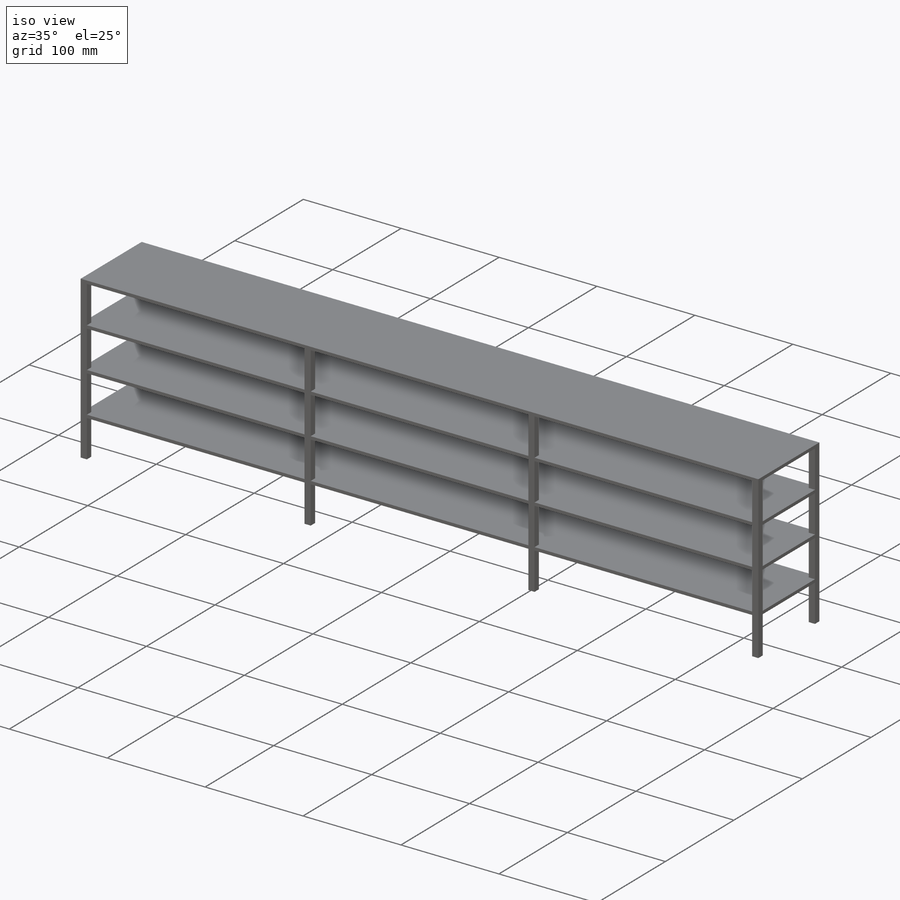
[diagram: iso view]
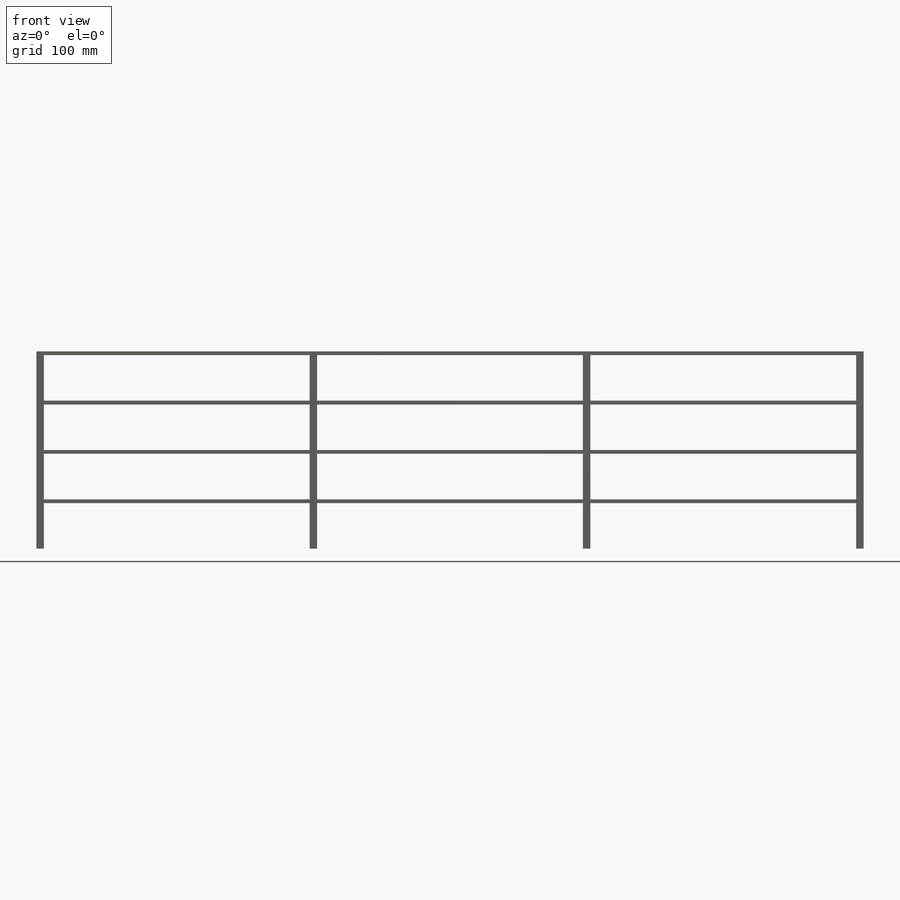
[diagram: front view]
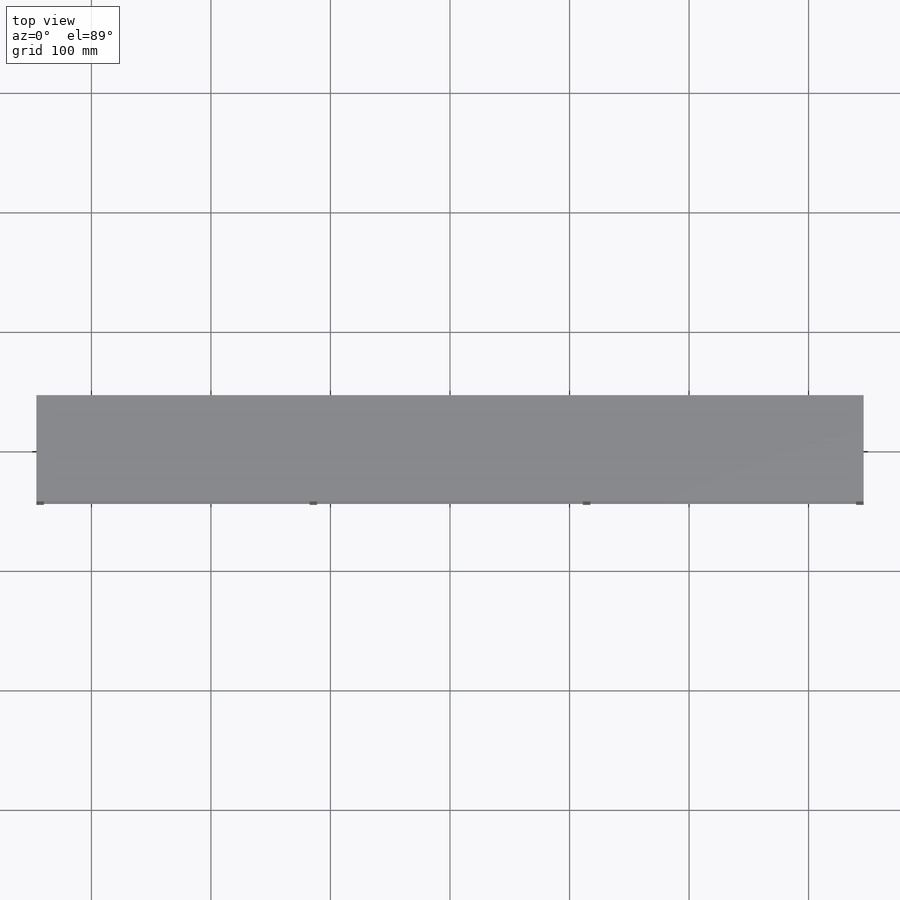
[diagram: top view]
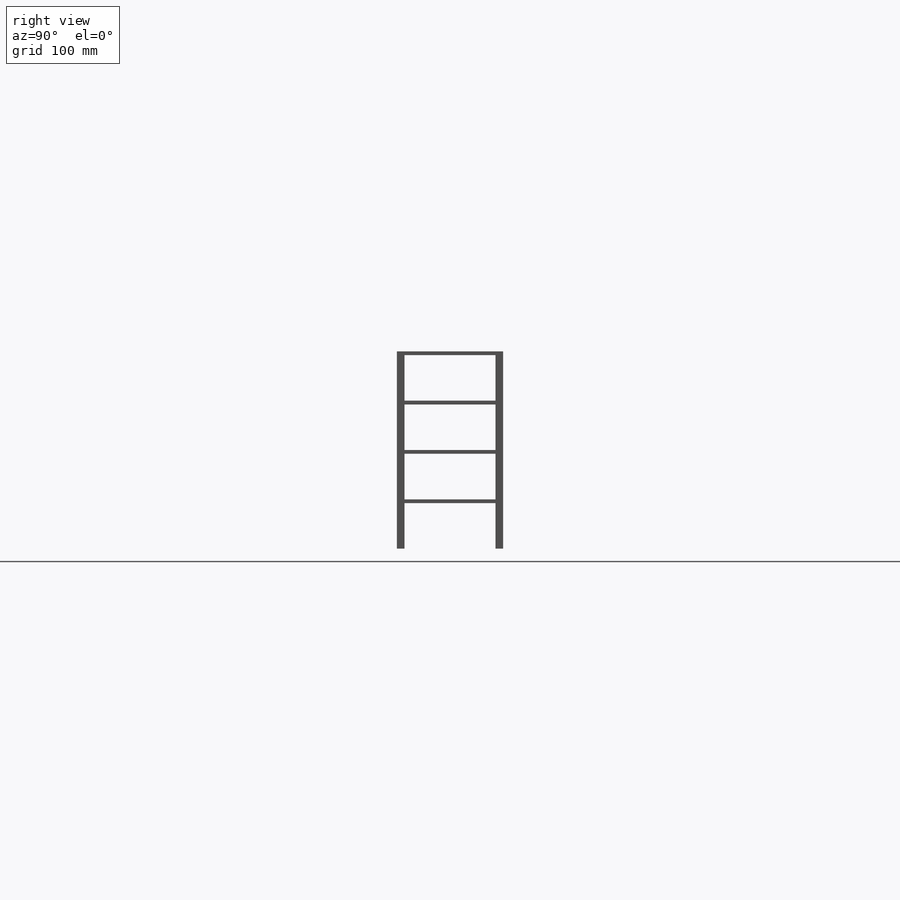
[diagram: right view]
SOLIDWORKS PART (.sldprt)
format: sldprt  version: not decoded by parser v0  size: 353,792 bytes
history: native  units: mm
features: sketch x3, extrude x2, material x1, pattern_linear x1 (+15 scaffold rows collapsed)
feature tree (22):
  scaffold x15  (default folders/planes/origin — collapsed)
  material  "6061 Alloy"
  sketch  "Sketch1"  dims[D1=88.9mm D2=692.15mm]
  sketch  "Sketch2"  dims[D1=6.35mm]
  extrude  "Extrude1"  Depth=38.1mm
  sketch  "Sketch3"
  extrude  "Extrude2"  Depth=3.175mm
  pattern_linear  "LPattern1"  Count1=4 Count2=1 Spacing1=41.275mm Spacing2=2.54mm
decode coverage: 5 of 6 modeling features carry decoded parameters
note: suppression state not decoded; provenance and decode notes live in map.json
